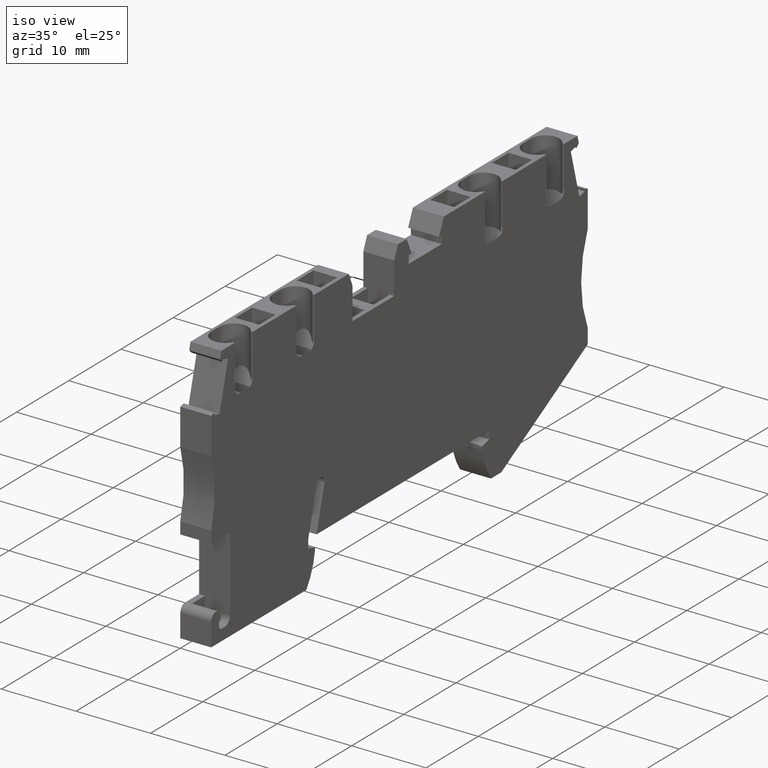
[diagram: clean part render]
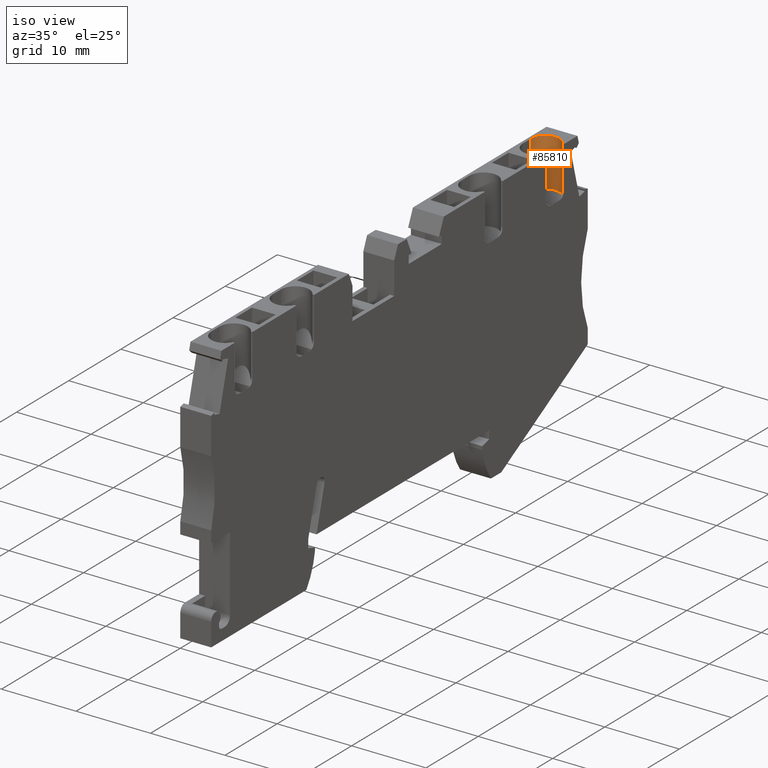
[diagram: same view with one face highlighted and labeled with its STEP entity id]
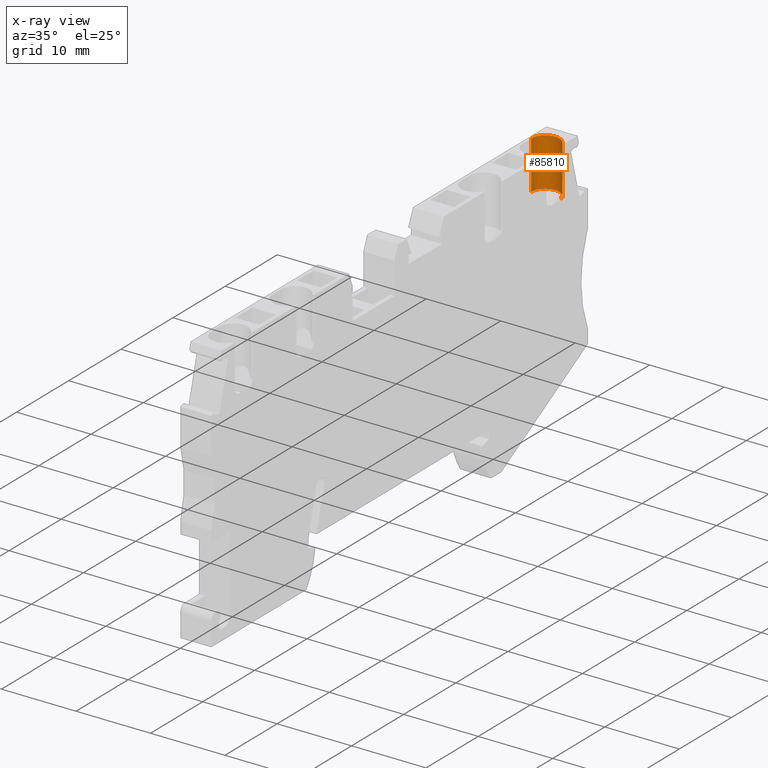
[diagram: x-ray of the same camera — body ghosted, the highlighted face saturated]
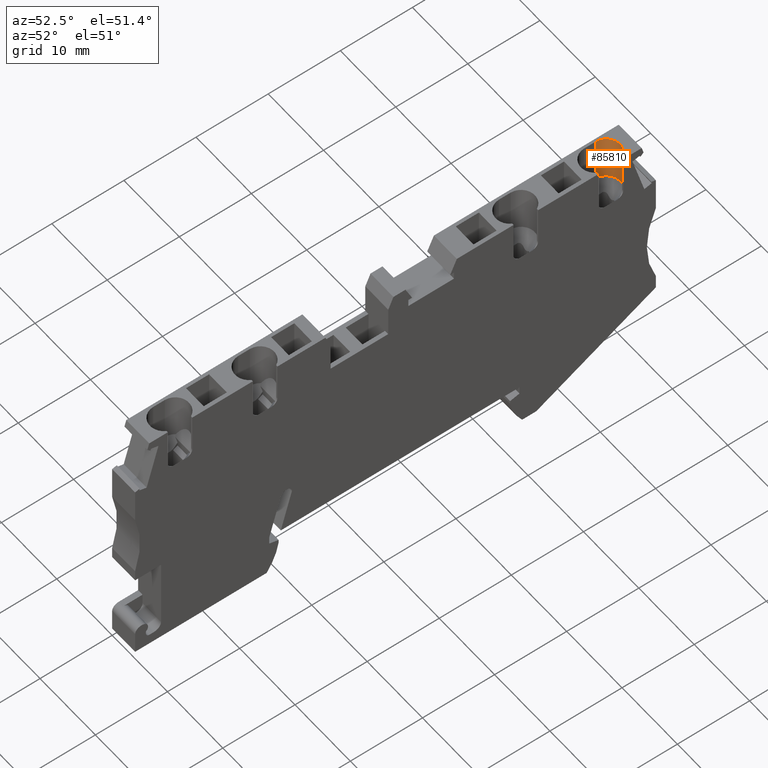
[diagram: same view with one face highlighted and labeled with its STEP entity id]
A machine part, iso view. The second image highlights one B-rep face of the part: STEP entity #85810.
The next image is the same camera in x-ray: the body ghosted, the highlighted face saturated — about 0% of this face is hidden behind the body in this view.
A second angle (auxiliary view) of the same face is appended — the face is thin or edge-on in the first view.
In plain terms, the highlighted cylindrical surface (edge-blend (fillet) strip) has radius 1.9 mm, axis along (0, -0, 1).
Its self-contained STEP definition (entity closure, byte-faithful):
#5180=CARTESIAN_POINT('',(63.6233227802841,30.5637100683528,
4.44089209850063E-16));
#5190=VERTEX_POINT('',#5180);
#22230=CARTESIAN_POINT('',(63.7244635846273,37.1249424630869,
-0.226679946932008));
#22240=VERTEX_POINT('',#22230);
#22270=CARTESIAN_POINT('',(62.8311720481498,37.0152600540221,
-1.89999999999999));
#22280=DIRECTION('',(-0.121869343405264,0.992546151641308,
-6.8651698797631E-30));
#22290=DIRECTION('',(-0.992546151641308,-0.121869343405264,
-6.12323399573707E-17));
#22300=AXIS2_PLACEMENT_3D('',#22270,#22280,#22290);
#22310=CIRCLE('',#22300,1.9);
#22320=CARTESIAN_POINT('',(62.8311720481498,37.0152600540221,
-3.79999999999999));
#22330=VERTEX_POINT('',#22320);
#22340=EDGE_CURVE('',#22240,#22330,#22310,.T.);
#84350=CARTESIAN_POINT('',(63.513640371219,31.4570016048301,
-4.44089209850063E-15));
#84360=DIRECTION('',(4.80689802786314E-32,-3.91490427828703E-31,1.));
#84370=DIRECTION('',(0.992546151641322,0.121869343405148,0.));
#84380=AXIS2_PLACEMENT_3D('',#84350,#84360,#84370);
#84390=CYLINDRICAL_SURFACE('',#84380,0.9);
#84400=CARTESIAN_POINT('',(62.8311720481498,37.0152600540216,
-1.89999999999999));
#84410=DIRECTION('',(-0.121869343405264,0.992546151641308,
-6.8651698797631E-30));
#84420=DIRECTION('',(-0.992546151641308,-0.121869343405264,
-6.12323399573707E-17));
#84430=AXIS2_PLACEMENT_3D('',#84400,#84410,#84420);
#84440=CYLINDRICAL_SURFACE('',#84430,1.9);
#84450=CARTESIAN_POINT('',(64.4069319076962,31.5666840138948,
-0.226679946931654));
#84460=CARTESIAN_POINT('',(64.4105612659792,31.537125262727,
-0.226679946931652));
#84470=CARTESIAN_POINT('',(64.412729643418,31.5073461955193,
-0.225883015928328));
#84480=CARTESIAN_POINT('',(64.4134087465691,31.4774190170043,
-0.224294063483323));
#84490=CARTESIAN_POINT('',(64.413748134938,31.4624626200455,
-0.223499969128452));
#84500=CARTESIAN_POINT('',(64.4137145798652,31.4474849685039,
-0.222509053993169));
#84510=CARTESIAN_POINT('',(64.4133073095049,31.4325189547446,
-0.221327770591768));
#84520=CARTESIAN_POINT('',(64.4129000400751,31.4175529751762,
-0.220146489889084));
#84530=CARTESIAN_POINT('',(64.4121190577966,31.4025990565302,
-0.218774885820084));
#84540=CARTESIAN_POINT('',(64.4109675064577,31.3876906218305,
-0.217223192072557));
#84550=CARTESIAN_POINT('',(64.4098159550216,31.3727821858731,
-0.215671498194134));
#84560=CARTESIAN_POINT('',(64.4082938711256,31.3579196298394,
-0.213939781659406));
#84570=CARTESIAN_POINT('',(64.4064082780872,31.3431356113724,
-0.212041660831175));
#84580=CARTESIAN_POINT('',(64.4045226808349,31.3283515598656,
-0.210143535760963));
#84590=CARTESIAN_POINT('',(64.4022736382599,31.3136463995019,
-0.208079088227604));
#84600=CARTESIAN_POINT('',(64.3996717353832,31.2990509108864,
-0.205864713126307));
#84610=CARTESIAN_POINT('',(64.3944648044843,31.2698424030144,
-0.201433303237828));
#84620=CARTESIAN_POINT('',(64.3878624350514,31.2411491151091,
-0.19641431115667));
#84630=CARTESIAN_POINT('',(64.3799272950267,31.2129791352915,
-0.190921562012261));
#84640=CARTESIAN_POINT('',(64.3719796887292,31.1847648998395,
-0.185420183642714));
#84650=CARTESIAN_POINT('',(64.3626462490494,31.1569207260314,
-0.179411132796087));
#84660=CARTESIAN_POINT('',(64.3519815343176,31.1296117848074,
-0.173028825286706));
#84670=CARTESIAN_POINT('',(64.3413169479233,31.1023031722147,
-0.166646594580979));
#84680=CARTESIAN_POINT('',(64.3293225432262,31.0755340316036,
-0.159892677194467));
#84690=CARTESIAN_POINT('',(64.3160825999407,31.0494645272963,
-0.152917368613965));
#84700=CARTESIAN_POINT('',(64.3028426348047,31.0233949799651,
-0.14594204852175));
#84710=CARTESIAN_POINT('',(64.2883589946304,30.9980286510799,
-0.138746932153591));
#84720=CARTESIAN_POINT('',(64.2727416924676,30.9735089119392,
-0.131486005141341));
#84730=CARTESIAN_POINT('',(64.2571181295415,30.9489793431697,
-0.124222167322514));
#84740=CARTESIAN_POINT('',(64.2403925767619,30.9253391568605,
-0.116906387565256));
#84750=CARTESIAN_POINT('',(64.222605737279,30.902593713718,
-0.109648904505695));
#84760=CARTESIAN_POINT('',(64.2047920958614,30.8798139968147,
-0.102380485574871));
#84770=CARTESIAN_POINT('',(64.1858072417131,30.8578028796896,
-0.0951282021296505));
#84780=CARTESIAN_POINT('',(64.1657440170286,30.8367106770201,
-0.0880347756857729));
#84790=CARTESIAN_POINT('',(64.1456809005767,30.8156185881341,
-0.0809413875079162));
#84800=CARTESIAN_POINT('',(64.1245420824576,30.7954484672379,
-0.0740083016734754));
#84810=CARTESIAN_POINT('',(64.1024477116826,30.7763358161946,
-0.067370282010541));
#84820=CARTESIAN_POINT('',(64.0803531712397,30.7572230183809,
-0.0607322113726918));
#84830=CARTESIAN_POINT('',(64.0573065689721,30.7391706146769,
-0.0543905809896086));
#84840=CARTESIAN_POINT('',(64.0334465459683,30.7222897288593,
-0.0484630140226955));
#84850=CARTESIAN_POINT('',(64.0096101719524,30.705425574621,
-0.0425413221951179));
#84860=CARTESIAN_POINT('',(63.984892149395,30.6896751336445,
-0.037013203867944));
#84870=CARTESIAN_POINT('',(63.9592935834264,30.6750852317765,
-0.0319626837607648));
#84880=CARTESIAN_POINT('',(63.9465012538251,30.6677942439229,
-0.0294387955887321));
#84890=CARTESIAN_POINT('',(63.9335038012999,30.6608025381801,
-0.0270373487745865));
#84900=CARTESIAN_POINT('',(63.9203246922624,30.6541268555588,
-0.0247714823037082));
#84910=CARTESIAN_POINT('',(63.9071455809015,30.6474511717605,
-0.0225056154333481));
#84920=CARTESIAN_POINT('',(63.8937850485965,30.641091632889,
-0.0203753809529313));
#84930=CARTESIAN_POINT('',(63.8802681579709,30.6350623941938,
-0.0183919912022164));
#84940=CARTESIAN_POINT('',(63.8667512418598,30.6290331441308,
-0.0164085977118982));
#84950=CARTESIAN_POINT('',(63.8530782238605,30.6233343002505,
-0.0145720912165251));
#84960=CARTESIAN_POINT('',(63.8392749324239,30.6179770923462,
-0.0128915076455039));
#84970=CARTESIAN_POINT('',(63.825473112546,30.6126204555699,
-0.0112111032402445));
#84980=CARTESIAN_POINT('',(63.8115446655658,30.6076055199354,
-0.00968646713414779));
#84990=CARTESIAN_POINT('',(63.7974473808422,30.6029210575228,
-0.00831917321756001));
#85000=CARTESIAN_POINT('',(63.7833553122423,30.5982383284039,
-0.00695238521216916));
#85010=CARTESIAN_POINT('',(63.7691178172664,30.5938948861087,
-0.00574567597565225));
#85020=CARTESIAN_POINT('',(63.7547650070814,30.5899036230655,
-0.00470676944014151));
#85030=CARTESIAN_POINT('',(63.7404122105941,30.5859123638314,
-0.00366786389610705));
#85040=CARTESIAN_POINT('',(63.7259444511572,30.5822733901451,
-0.00279679664052467));
#85050=CARTESIAN_POINT('',(63.7113934676549,30.5789960736118,
-0.00209863366501323));
#85060=CARTESIAN_POINT('',(63.6822790608247,30.5724386387246,
-0.000701710845362474));
#85070=CARTESIAN_POINT('',(63.6528863983081,30.5673400242108,
2.13450824464222E-14));
#85080=CARTESIAN_POINT('',(63.6233227802836,30.5637100683529,
1.46549439242249E-14));
#85090=B_SPLINE_CURVE_WITH_KNOTS('',3,(#84450,#84460,#84470,#84480,
#84490,#84500,#84510,#84520,#84530,#84540,#84550,#84560,#84570,#84580,
#84590,#84600,#84610,#84620,#84630,#84640,#84650,#84660,#84670,#84680,
#84690,#84700,#84710,#84720,#84730,#84740,#84750,#84760,#84770,#84780,
#84790,#84800,#84810,#84820,#84830,#84840,#84850,#84860,#84870,#84880,
#84890,#84900,#84910,#84920,#84930,#84940,#84950,#84960,#84970,#84980,
#84990,#85000,#85010,#85020,#85030,#85040,#85050,#85060,#85070,#85080),
.UNSPECIFIED.,.F.,.F.,(4,3,3,3,3,3,3,3,3,3,3,3,3,3,3,3,3,3,3,3,3,4),(0.,
0.0895788511444154,0.134582790838436,0.179665188387778,0.224757201744866
,0.269784774797846,0.359387704760085,0.449153773255497,0.539282471610804
,0.629355195121323,0.71893924510179,0.808644017449789,0.898559331037014,
0.988259223927196,1.07773521034495,1.12256809554549,1.16739148672467,
1.21214722175972,1.2568418690847,1.30161661826649,1.34642026162063,
1.43587721706192),.UNSPECIFIED.);
#85100=SURFACE_CURVE('',#85090,(#84390,#84440),.CURVE_3D.);
#85110=CARTESIAN_POINT('',(64.4069319076962,31.5666840138948,
-0.226679946931625));
#85120=VERTEX_POINT('',#85110);
#85130=EDGE_CURVE('',#85120,#5190,#85100,.T.);
#85400=CARTESIAN_POINT('',(63.7244635846274,37.1249424630863,
-0.226679946932026));
#85410=DIRECTION('',(-0.121869343405264,0.992546151641308,
-6.86516987976346E-30));
#85420=VECTOR('',#85410,1.);
#85430=LINE('',#85400,#85420);
#85440=EDGE_CURVE('',#85120,#22240,#85430,.T.);
#85560=CARTESIAN_POINT('',(62.8311720481498,37.0152600540216,
-1.89999999999999));
#85570=DIRECTION('',(-0.121869343405264,0.992546151641308,
-6.8651698797631E-30));
#85580=DIRECTION('',(-0.992546151641308,-0.121869343405264,
-6.12323399573707E-17));
#85590=AXIS2_PLACEMENT_3D('',#85560,#85570,#85580);
#85600=CYLINDRICAL_SURFACE('',#85590,1.9);
#85610=CARTESIAN_POINT('',(62.8311720481499,37.0152600540219,
-3.79999999999998));
#85620=DIRECTION('',(0.121869343405273,-0.992546151641307,
-1.35662505282565E-30));
#85630=VECTOR('',#85620,1.);
#85640=LINE('',#85610,#85630);
#85650=CARTESIAN_POINT('',(63.6233227802842,30.5637100683528,
-3.79999999999995));
#85660=VERTEX_POINT('',#85650);
#85670=EDGE_CURVE('',#22330,#85660,#85640,.T.);
#85680=ORIENTED_EDGE('',*,*,#85670,.T.);
#85690=ORIENTED_EDGE('',*,*,#22340,.T.);
#85700=ORIENTED_EDGE('',*,*,#85440,.T.);
#85710=ORIENTED_EDGE('',*,*,#85130,.F.);
#85720=CARTESIAN_POINT('',(63.6233227802843,30.5637100683531,
-1.89999999999999));
#85730=DIRECTION('',(-0.121869343405148,0.992546151641323,
4.11763822109946E-31));
#85740=DIRECTION('',(-4.80689802786314E-32,3.91490427828703E-31,-1.));
#85750=AXIS2_PLACEMENT_3D('',#85720,#85730,#85740);
#85760=CIRCLE('',#85750,1.90000000000001);
#85770=EDGE_CURVE('',#5190,#85660,#85760,.T.);
#85780=ORIENTED_EDGE('',*,*,#85770,.F.);
#85790=EDGE_LOOP('',(#85780,#85710,#85700,#85690,#85680));
#85800=FACE_OUTER_BOUND('',#85790,.T.);
#85810=ADVANCED_FACE('',(#85800),#85600,.F.);